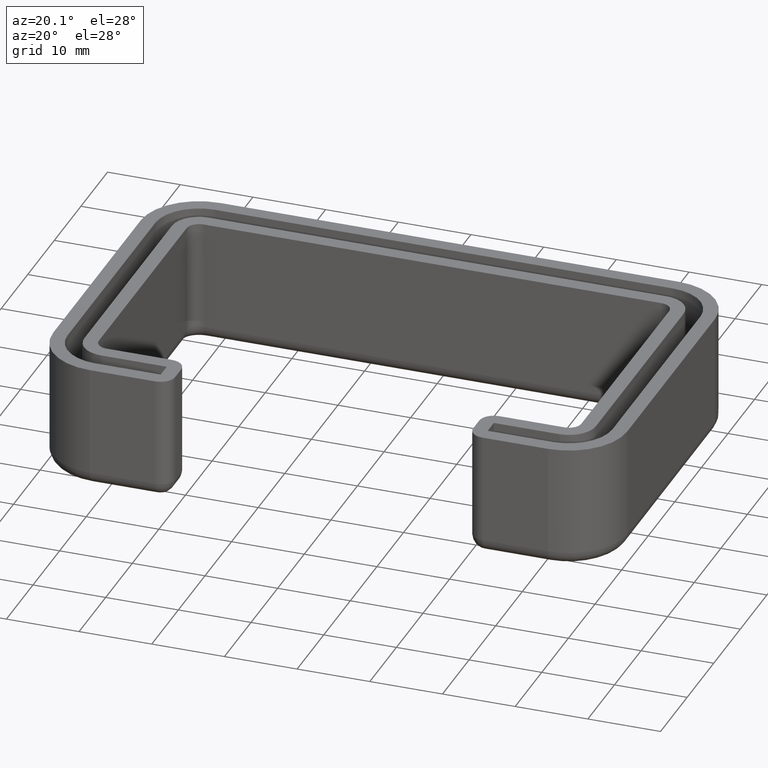
[diagram: clean part render]
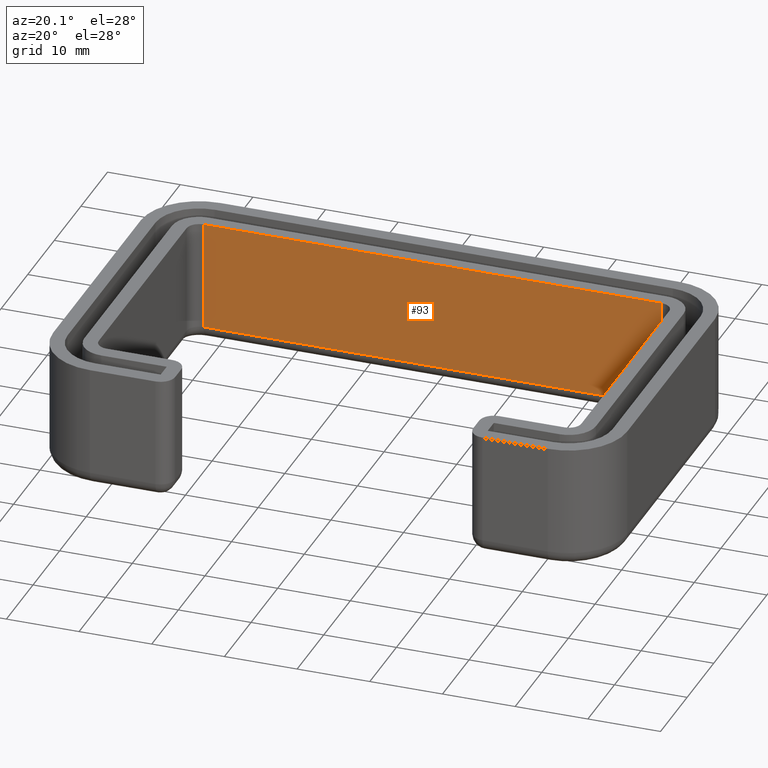
[diagram: same view with one face highlighted and labeled with its STEP entity id]
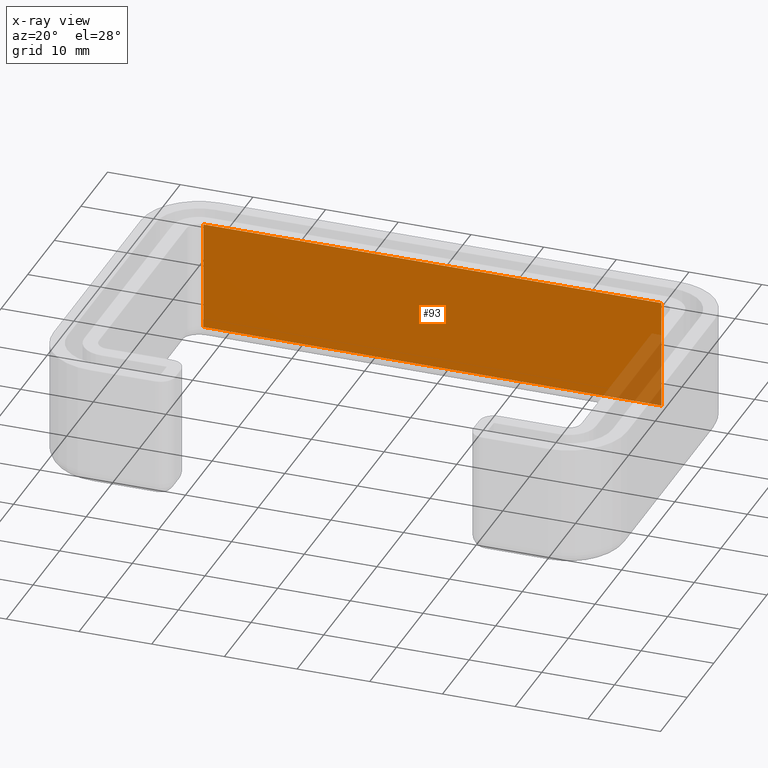
[diagram: x-ray of the same camera — body ghosted, the highlighted face saturated]
A machine part, auxiliary view. The second image highlights one B-rep face of the part: STEP entity #93.
The next image is the same camera in x-ray: the body ghosted, the highlighted face saturated — about 5% of this face is hidden behind the body in this view.
In plain terms, the highlighted planar face has unit normal (0, -1, 0).
Its self-contained STEP definition (entity closure, byte-faithful):
#93 = ADVANCED_FACE( '', ( #184 ), #185, .T. );
#184 = FACE_OUTER_BOUND( '', #327, .T. );
#185 = PLANE( '', #328 );
#327 = EDGE_LOOP( '', ( #630, #631, #632, #633 ) );
#328 = AXIS2_PLACEMENT_3D( '', #634, #635, #636 );
#630 = ORIENTED_EDGE( '', *, *, #1109, .T. );
#631 = ORIENTED_EDGE( '', *, *, #1110, .T. );
#632 = ORIENTED_EDGE( '', *, *, #1111, .F. );
#633 = ORIENTED_EDGE( '', *, *, #1006, .T. );
#634 = CARTESIAN_POINT( '', ( 31.4999999999998, 18.2000000000001, 1.73472347597681E-015 ) );
#635 = DIRECTION( '', ( 0.000000000000000, -1.00000000000000, 0.000000000000000 ) );
#636 = DIRECTION( '', ( 1.00000000000000, 0.000000000000000, 0.000000000000000 ) );
#1006 = EDGE_CURVE( '', #1191, #1189, #1192, .T. );
#1109 = EDGE_CURVE( '', #1189, #1373, #1379, .T. );
#1110 = EDGE_CURVE( '', #1373, #1380, #1381, .F. );
#1111 = EDGE_CURVE( '', #1191, #1380, #1382, .T. );
#1189 = VERTEX_POINT( '', #1477 );
#1191 = VERTEX_POINT( '', #1479 );
#1192 = LINE( '', #1480, #1481 );
#1373 = VERTEX_POINT( '', #1715 );
#1379 = LINE( '', #1724, #1725 );
#1380 = VERTEX_POINT( '', #1726 );
#1381 = LINE( '', #1727, #1728 );
#1382 = LINE( '', #1729, #1730 );
#1477 = CARTESIAN_POINT( '', ( -31.5000000000002, 18.2000000000001, 1.73472347597681E-015 ) );
#1479 = CARTESIAN_POINT( '', ( 31.4999999999998, 18.2000000000001, 1.73472347597681E-015 ) );
#1480 = CARTESIAN_POINT( '', ( 31.4999999999998, 18.2000000000001, 1.73472347597681E-015 ) );
#1481 = VECTOR( '', #1862, 1000.00000000000 );
#1715 = CARTESIAN_POINT( '', ( -31.5000000000002, 18.2000000000001, -15.0000000000000 ) );
#1724 = CARTESIAN_POINT( '', ( -31.5000000000002, 18.2000000000001, 1.73472347597681E-015 ) );
#1725 = VECTOR( '', #2057, 1000.00000000000 );
#1726 = CARTESIAN_POINT( '', ( 31.4999999999998, 18.2000000000001, -15.0000000000000 ) );
#1727 = CARTESIAN_POINT( '', ( 31.4999999999998, 18.2000000000001, -15.0000000000000 ) );
#1728 = VECTOR( '', #2058, 1000.00000000000 );
#1729 = CARTESIAN_POINT( '', ( 31.4999999999998, 18.2000000000001, 1.73472347597681E-015 ) );
#1730 = VECTOR( '', #2059, 1000.00000000000 );
#1862 = DIRECTION( '', ( -1.00000000000000, 0.000000000000000, 0.000000000000000 ) );
#2057 = DIRECTION( '', ( 0.000000000000000, 0.000000000000000, -1.00000000000000 ) );
#2058 = DIRECTION( '', ( -1.00000000000000, 0.000000000000000, 0.000000000000000 ) );
#2059 = DIRECTION( '', ( 0.000000000000000, 0.000000000000000, -1.00000000000000 ) );